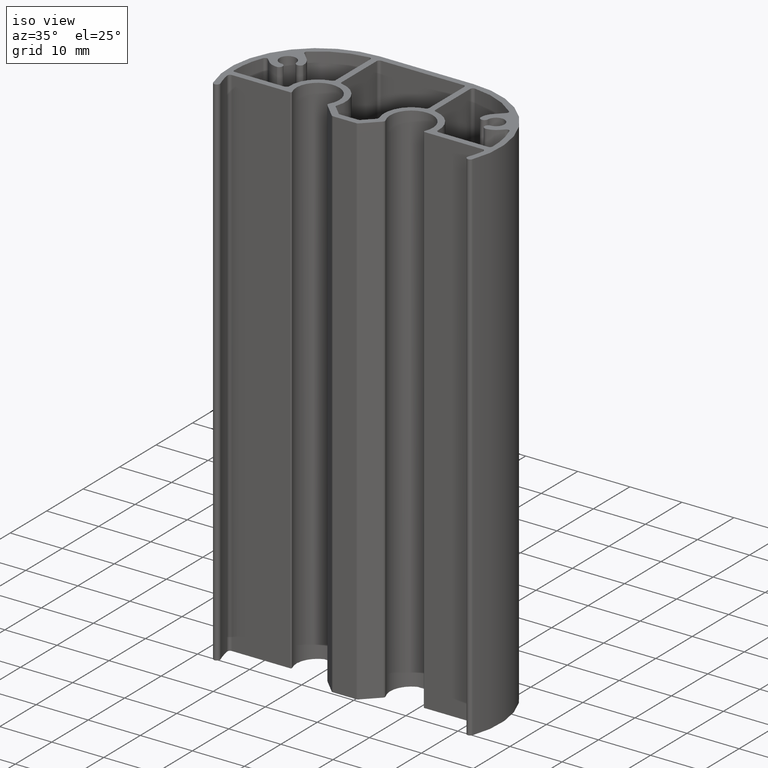
[diagram: clean part render]
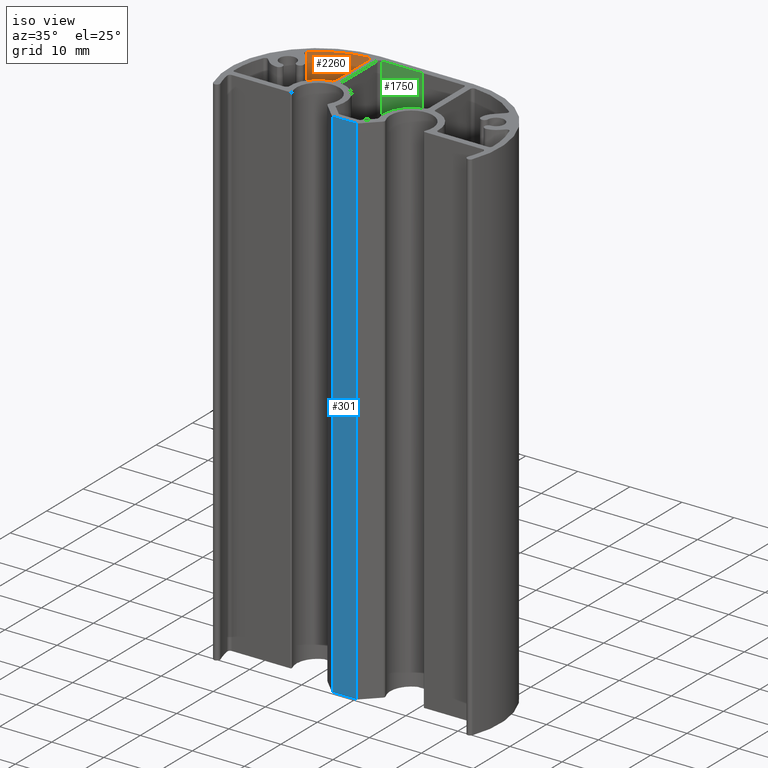
[diagram: same view with three faces highlighted in distinct colors, each labeled with its STEP entity id]
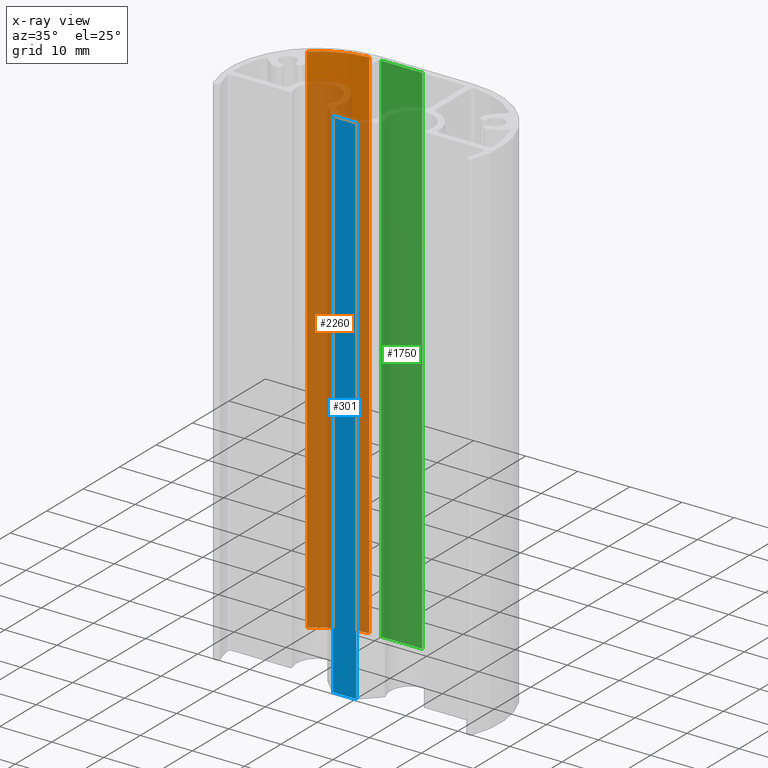
[diagram: x-ray of the same camera — body ghosted, the three highlighted faces saturated]
A machine part, iso view with three faces highlighted in distinct colors.
The next image is the same camera in x-ray (body ghosted, the three faces saturated) — at least one of them is partly hidden behind the body in this view.
Their STEP definitions:

[orange] entity #2260 — the highlighted cylindrical surface (partial cylindrical patch) has radius 15.8 mm, axis along (0, 0, 1).
#1000=CARTESIAN_POINT('',(-10.135947712414463,-1.240887626751146,100.0));
#1001=VERTEX_POINT('',#1000);
#1009=CARTESIAN_POINT('',(-19.398346832836069,-5.104018193424963,100.0));
#1010=VERTEX_POINT('',#1009);
#1011=CARTESIAN_POINT('',(-8.999999999989996,-17.000000000061963,100.0));
#1012=DIRECTION('',(0.0,0.0,-1.0));
#1013=DIRECTION('',(-0.071895424836992,0.997412175526000,0.0));
#1014=AXIS2_PLACEMENT_3D('',#1011,#1012,#1013);
#1015=CIRCLE('',#1014,15.799999999999955);
#1016=EDGE_CURVE('',#1010,#1001,#1015,.T.);
#1419=CARTESIAN_POINT('',(-19.398346832836069,-5.104018193424963,200.0));
#1420=VERTEX_POINT('',#1419);
#1428=CARTESIAN_POINT('',(-10.135947712414463,-1.240887626751146,200.0));
#1429=VERTEX_POINT('',#1428);
#1430=CARTESIAN_POINT('',(-8.999999999989996,-17.000000000061963,200.0));
#1431=DIRECTION('',(0.0,0.0,1.0));
#1432=DIRECTION('',(-0.071895424836992,0.997412175526000,0.0));
#1433=AXIS2_PLACEMENT_3D('',#1430,#1431,#1432);
#1434=CIRCLE('',#1433,15.799999999999955);
#1435=EDGE_CURVE('',#1429,#1420,#1434,.T.);
#2233=CARTESIAN_POINT('',(-10.135947712414463,-1.240887626751146,200.0));
#2234=DIRECTION('',(0.0,0.0,-1.0));
#2235=VECTOR('',#2234,100.0);
#2236=LINE('',#2233,#2235);
#2237=EDGE_CURVE('',#1429,#1001,#2236,.T.);
#2244=CARTESIAN_POINT('',(-8.999999999989996,-17.000000000061959,200.0));
#2245=DIRECTION('',(0.0,0.0,1.0));
#2246=DIRECTION('',(-0.071895424836992,0.997412175526000,0.0));
#2247=AXIS2_PLACEMENT_3D('',#2244,#2245,#2246);
#2248=CYLINDRICAL_SURFACE('',#2247,15.799999999999955);
#2249=ORIENTED_EDGE('',*,*,#1435,.T.);
#2250=CARTESIAN_POINT('',(-19.398346832836069,-5.104018193424963,200.0));
#2251=DIRECTION('',(0.0,0.0,-1.0));
#2252=VECTOR('',#2251,100.0);
#2253=LINE('',#2250,#2252);
#2254=EDGE_CURVE('',#1420,#1010,#2253,.T.);
#2255=ORIENTED_EDGE('',*,*,#2254,.T.);
#2256=ORIENTED_EDGE('',*,*,#1016,.T.);
#2257=ORIENTED_EDGE('',*,*,#2237,.F.);
#2258=EDGE_LOOP('',(#2249,#2255,#2256,#2257));
#2259=FACE_OUTER_BOUND('',#2258,.T.);
#2260=ADVANCED_FACE('',(#2259),#2248,.F.);

[blue] entity #301 — the highlighted planar face has unit normal (0, -1, 0).
#243=CARTESIAN_POINT('',(-2.232233047017417,-22.499999999967599,100.0));
#244=VERTEX_POINT('',#243);
#252=CARTESIAN_POINT('',(-2.232233047017417,-22.499999999967599,200.0));
#253=VERTEX_POINT('',#252);
#254=CARTESIAN_POINT('',(-2.232233047017417,-22.499999999967599,100.0));
#255=DIRECTION('',(0.0,0.0,1.0));
#256=VECTOR('',#255,100.0);
#257=LINE('',#254,#256);
#258=EDGE_CURVE('',#244,#253,#257,.T.);
#271=CARTESIAN_POINT('',(-2.232233047017417,-22.499999999967599,100.0));
#272=DIRECTION('',(0.0,-1.0,0.0));
#273=DIRECTION('',(1.0,0.0,0.0));
#274=AXIS2_PLACEMENT_3D('',#271,#272,#273);
#275=PLANE('',#274);
#276=CARTESIAN_POINT('',(2.232233047049476,-22.499999999967599,100.0));
#277=VERTEX_POINT('',#276);
#278=CARTESIAN_POINT('',(-2.232233047017417,-22.499999999967599,100.0));
#279=DIRECTION('',(1.0,0.0,0.0));
#280=VECTOR('',#279,4.464466094066893);
#281=LINE('',#278,#280);
#282=EDGE_CURVE('',#244,#277,#281,.T.);
#283=ORIENTED_EDGE('',*,*,#282,.T.);
#284=CARTESIAN_POINT('',(2.232233047049476,-22.499999999967599,200.0));
#285=VERTEX_POINT('',#284);
#286=CARTESIAN_POINT('',(2.232233047049476,-22.499999999967599,100.0));
#287=DIRECTION('',(0.0,0.0,1.0));
#288=VECTOR('',#287,100.0);
#289=LINE('',#286,#288);
#290=EDGE_CURVE('',#277,#285,#289,.T.);
#291=ORIENTED_EDGE('',*,*,#290,.T.);
#292=CARTESIAN_POINT('',(-2.232233047017417,-22.499999999967599,200.0));
#293=DIRECTION('',(1.0,0.0,0.0));
#294=VECTOR('',#293,4.464466094066893);
#295=LINE('',#292,#294);
#296=EDGE_CURVE('',#253,#285,#295,.T.);
#297=ORIENTED_EDGE('',*,*,#296,.F.);
#298=ORIENTED_EDGE('',*,*,#258,.F.);
#299=EDGE_LOOP('',(#283,#291,#297,#298));
#300=FACE_OUTER_BOUND('',#299,.T.);
#301=ADVANCED_FACE('',(#300),#275,.T.);

[green] entity #1750 — the highlighted planar face has unit normal (0, -1, 0).
#747=CARTESIAN_POINT('',(1.637090E-011,-1.199999999967531,100.0));
#748=VERTEX_POINT('',#747);
#755=CARTESIAN_POINT('',(-7.899999999983720,-1.199999999967758,100.0));
#756=VERTEX_POINT('',#755);
#757=CARTESIAN_POINT('',(1.637090E-011,-1.199999999967531,100.0));
#758=DIRECTION('',(-1.0,0.0,0.0));
#759=VECTOR('',#758,7.900000000000091);
#760=LINE('',#757,#759);
#761=EDGE_CURVE('',#748,#756,#760,.T.);
#1245=CARTESIAN_POINT('',(1.637090E-011,-1.199999999967531,200.0));
#1246=VERTEX_POINT('',#1245);
#1374=CARTESIAN_POINT('',(-7.899999999983720,-1.199999999967758,200.0));
#1375=VERTEX_POINT('',#1374);
#1383=CARTESIAN_POINT('',(1.637090E-011,-1.199999999967531,200.0));
#1384=DIRECTION('',(-1.0,0.0,0.0));
#1385=VECTOR('',#1384,7.900000000000091);
#1386=LINE('',#1383,#1385);
#1387=EDGE_CURVE('',#1246,#1375,#1386,.T.);
#1717=CARTESIAN_POINT('',(1.637090E-011,-1.199999999967531,200.0));
#1718=DIRECTION('',(0.0,0.0,-1.0));
#1719=VECTOR('',#1718,100.0);
#1720=LINE('',#1717,#1719);
#1721=EDGE_CURVE('',#1246,#748,#1720,.T.);
#1734=CARTESIAN_POINT('',(1.637090E-011,-1.199999999967531,200.0));
#1735=DIRECTION('',(0.0,-1.0,0.0));
#1736=DIRECTION('',(-1.0,0.0,0.0));
#1737=AXIS2_PLACEMENT_3D('',#1734,#1735,#1736);
#1738=PLANE('',#1737);
#1739=ORIENTED_EDGE('',*,*,#1387,.T.);
#1740=CARTESIAN_POINT('',(-7.899999999983720,-1.199999999967758,200.0));
#1741=DIRECTION('',(0.0,0.0,-1.0));
#1742=VECTOR('',#1741,100.0);
#1743=LINE('',#1740,#1742);
#1744=EDGE_CURVE('',#1375,#756,#1743,.T.);
#1745=ORIENTED_EDGE('',*,*,#1744,.T.);
#1746=ORIENTED_EDGE('',*,*,#761,.F.);
#1747=ORIENTED_EDGE('',*,*,#1721,.F.);
#1748=EDGE_LOOP('',(#1739,#1745,#1746,#1747));
#1749=FACE_OUTER_BOUND('',#1748,.T.);
#1750=ADVANCED_FACE('',(#1749),#1738,.T.);